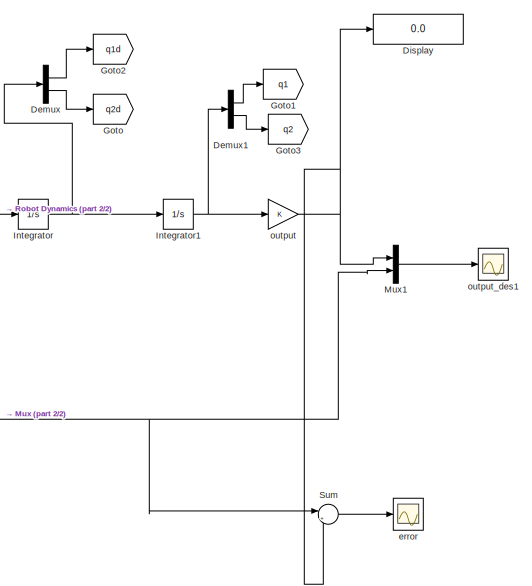
[diagram: root canvas - part 1/2, right side, full height]
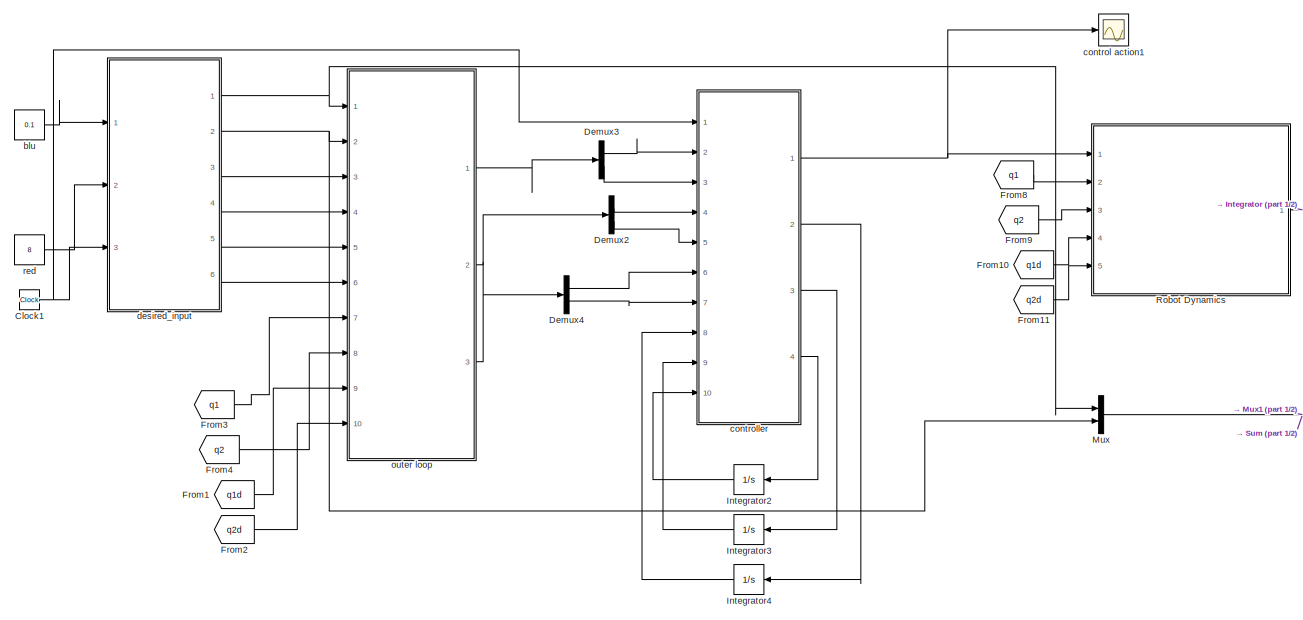
[diagram: root canvas - part 2/2, center side, full height]
MODEL slx_bdb93ca90884
KIND model
CONFIG AbsTol = auto
CONFIG EnableMultiTasking = off
CONFIG FixedStep = 0.001
CONFIG MaxStep = auto
CONFIG MinStep = auto
CONFIG RelTol = 1e-3
CONFIG SampleTimeConstraint = Unconstrained
CONFIG SolverName = ode5
CONFIG StartTime = 0.0
CONFIG StopTime = 5
BLOCK [Clock] Clock1
BLOCK [Demux] Demux
  Outputs = 2
  Ports = [1, 2]
BLOCK [Demux] Demux1
  Outputs = 2
  Ports = [1, 2]
BLOCK [Demux] Demux2
  Outputs = 2
  Ports = [1, 2]
BLOCK [Demux] Demux3
  Outputs = 2
  Ports = [1, 2]
BLOCK [Demux] Demux4
  Outputs = 2
  Ports = [1, 2]
BLOCK [Display] Display
  Decimation = 1
  Ports = [1]
BLOCK [From] From1
  GotoTag = q1d
  TagVisibility = global
BLOCK [From] From10
  GotoTag = q1d
  TagVisibility = global
BLOCK [From] From11
  GotoTag = q2d
  TagVisibility = global
BLOCK [From] From2
  GotoTag = q2d
  TagVisibility = global
BLOCK [From] From3
  GotoTag = q1
  TagVisibility = global
BLOCK [From] From4
  GotoTag = q2
  TagVisibility = global
BLOCK [From] From8
  GotoTag = q1
  TagVisibility = global
BLOCK [From] From9
  GotoTag = q2
  TagVisibility = global
BLOCK [Goto] Goto
  GotoTag = q2d
  TagVisibility = global
BLOCK [Goto] Goto1
  GotoTag = q1
  TagVisibility = global
BLOCK [Goto] Goto2
  GotoTag = q1d
  TagVisibility = global
BLOCK [Goto] Goto3
  GotoTag = q2
  TagVisibility = global
BLOCK [Integrator] Integrator
  InitialCondition = [0;0]
  Ports = [1, 1]
BLOCK [Integrator] Integrator1
  InitialCondition = [0;0]
  Ports = [1, 1]
BLOCK [Integrator] Integrator2
  InitialCondition = rand(3,2)
  Ports = [1, 1]
BLOCK [Integrator] Integrator3
  InitialCondition = rand(6,2)
  Ports = [1, 1]
BLOCK [Integrator] Integrator4
  InitialCondition = rand(6,2)
  Ports = [1, 1]
BLOCK [Mux] Mux
  DisplayOption = bar
  Inputs = 2
  Ports = [2, 1]
BLOCK [Mux] Mux1
  DisplayOption = bar
  Inputs = 2
  Ports = [2, 1]
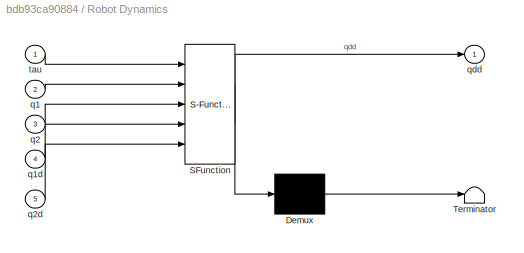
BLOCK [SubSystem] Robot Dynamics
  ErrorFcn = Stateflow.Translate.translate
  PermitHierarchicalResolution = ExplicitOnly
  Ports = [5, 1]
  RequestExecContextInheritance = off
  SFBlockType = MATLAB Function
  TreatAsAtomicUnit = on
BLOCK [Demux] Robot Dynamics/ Demux 
  Outputs = 1
  Ports = [1, 1]
BLOCK [S-Function] Robot Dynamics/ SFunction 
  EnableBusSupport = on
  FunctionName = sf_sfun
  PortCounts = [5 2]
  Ports = [5, 2]
  SFcnIsStateOwnerBlock = off
  SFunctionDeploymentMode = off
  Tag = Stateflow S-Function 1
BLOCK [Terminator] Robot Dynamics/ Terminator 
BLOCK [Inport] Robot Dynamics/q1
  Port = 2
BLOCK [Inport] Robot Dynamics/q1d
  Port = 4
BLOCK [Inport] Robot Dynamics/q2
  Port = 3
BLOCK [Inport] Robot Dynamics/q2d
  Port = 5
BLOCK [Outport] Robot Dynamics/qdd
BLOCK [Inport] Robot Dynamics/tau
BLOCK [Sum] Sum
  Inputs = |+-
  Ports = [2, 1]
BLOCK [Constant] blu
  Value = 0.1
BLOCK [Scope] control action1
  Floating = off
  NumInputPorts = 1
  Ports = [1]
  ScopeSpecificationString = Simulink.scopes.TimeScopeBlockCfg('CurrentConfiguration', extmgr.ConfigurationSet(extmgr.Configuration('Core','General UI',true,'FigureColor',[1 1 1]),extmgr.Configuration('Core','Source UI',true),extmgr.Configuration('Sources','WiredSimulink',true,'DataLoggingVariableName','ScopeData1','DataLoggingSaveFormat','StructureWithTime','DataLoggingDecimation','1','DataLoggingDecimateData',true),extmgr.C...<+2311ch>
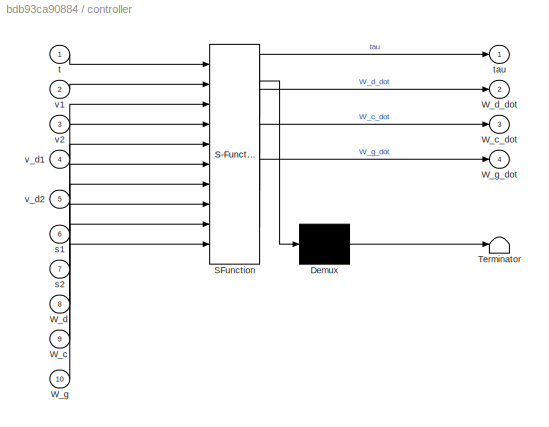
BLOCK [SubSystem] controller
  ErrorFcn = Stateflow.Translate.translate
  PermitHierarchicalResolution = ExplicitOnly
  Ports = [10, 4]
  RequestExecContextInheritance = off
  SFBlockType = MATLAB Function
  TreatAsAtomicUnit = on
BLOCK [Demux] controller/ Demux 
  Outputs = 1
  Ports = [1, 1]
BLOCK [S-Function] controller/ SFunction 
  EnableBusSupport = on
  FunctionName = sf_sfun
  PortCounts = [10 5]
  Ports = [10, 5]
  SFcnIsStateOwnerBlock = off
  SFunctionDeploymentMode = off
  Tag = Stateflow S-Function 2
BLOCK [Terminator] controller/ Terminator 
BLOCK [Inport] controller/W_c
  Port = 9
BLOCK [Outport] controller/W_c_dot
  Port = 3
BLOCK [Inport] controller/W_d
  Port = 8
BLOCK [Outport] controller/W_d_dot
  Port = 2
BLOCK [Inport] controller/W_g
  Port = 10
BLOCK [Outport] controller/W_g_dot
  Port = 4
BLOCK [Inport] controller/s1
  Port = 6
BLOCK [Inport] controller/s2
  Port = 7
BLOCK [Inport] controller/t
BLOCK [Outport] controller/tau
BLOCK [Inport] controller/v1
  Port = 2
BLOCK [Inport] controller/v2
  Port = 3
BLOCK [Inport] controller/v_d1
  Port = 4
BLOCK [Inport] controller/v_d2
  Port = 5
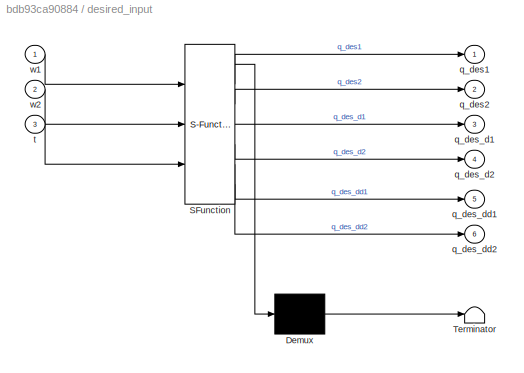
BLOCK [SubSystem] desired_input
  ErrorFcn = Stateflow.Translate.translate
  PermitHierarchicalResolution = ExplicitOnly
  Ports = [3, 6]
  RequestExecContextInheritance = off
  SFBlockType = MATLAB Function
  TreatAsAtomicUnit = on
BLOCK [Demux] desired_input/ Demux 
  Outputs = 1
  Ports = [1, 1]
BLOCK [S-Function] desired_input/ SFunction 
  EnableBusSupport = on
  FunctionName = sf_sfun
  PortCounts = [3 7]
  Ports = [3, 7]
  SFcnIsStateOwnerBlock = off
  SFunctionDeploymentMode = off
  Tag = Stateflow S-Function 4
BLOCK [Terminator] desired_input/ Terminator 
BLOCK [Outport] desired_input/q_des1
BLOCK [Outport] desired_input/q_des2
  Port = 2
BLOCK [Outport] desired_input/q_des_d1
  Port = 3
BLOCK [Outport] desired_input/q_des_d2
  Port = 4
BLOCK [Outport] desired_input/q_des_dd1
  Port = 5
BLOCK [Outport] desired_input/q_des_dd2
  Port = 6
BLOCK [Inport] desired_input/t
  Port = 3
BLOCK [Inport] desired_input/w1
BLOCK [Inport] desired_input/w2
  Port = 2
BLOCK [Scope] error
  Floating = off
  NumInputPorts = 1
  Ports = [1]
  ScopeSpecificationString = C++SS(StrPVP('Location','[10, 106, 1372, 757]'),StrPVP('Open','off'),StrPVP('ZoomMode','yonly'),MxPVP('AxesTitles',54,'struct(''axes1'',''%<SignalLabel>'')'),MxPVP('ScopeGraphics',57,'struct(''FigureColor'',''[0.156862745098039 0.156862745098039 0.156862745098039]'',''AxesColor'',''[0 0 0]'',''AxesTickColor'',''[0.686274509803922 0.686274509803922 0.686274509803922]'',''LineColors'',''[1 1 0;1 0 1...<+377ch>
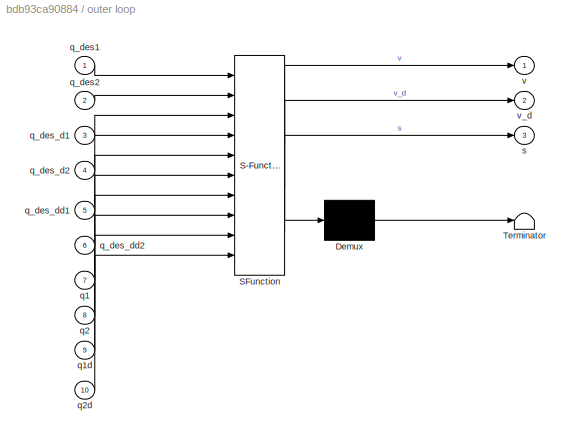
BLOCK [SubSystem] outer loop
  ErrorFcn = Stateflow.Translate.translate
  PermitHierarchicalResolution = ExplicitOnly
  Ports = [10, 3]
  RequestExecContextInheritance = off
  SFBlockType = MATLAB Function
  TreatAsAtomicUnit = on
BLOCK [Demux] outer loop/ Demux 
  Outputs = 1
  Ports = [1, 1]
BLOCK [S-Function] outer loop/ SFunction 
  EnableBusSupport = on
  FunctionName = sf_sfun
  PortCounts = [10 4]
  Ports = [10, 4]
  SFcnIsStateOwnerBlock = off
  SFunctionDeploymentMode = off
  Tag = Stateflow S-Function 3
BLOCK [Terminator] outer loop/ Terminator 
BLOCK [Inport] outer loop/q1
  Port = 7
BLOCK [Inport] outer loop/q1d
  Port = 9
BLOCK [Inport] outer loop/q2
  Port = 8
BLOCK [Inport] outer loop/q2d
  Port = 10
BLOCK [Inport] outer loop/q_des1
BLOCK [Inport] outer loop/q_des2
  Port = 2
BLOCK [Inport] outer loop/q_des_d1
  Port = 3
BLOCK [Inport] outer loop/q_des_d2
  Port = 4
BLOCK [Inport] outer loop/q_des_dd1
  Port = 5
BLOCK [Inport] outer loop/q_des_dd2
  Port = 6
BLOCK [Outport] outer loop/s
  Port = 3
BLOCK [Outport] outer loop/v
BLOCK [Outport] outer loop/v_d
  Port = 2
BLOCK [Gain] output
BLOCK [Scope] output_des1
  Floating = off
  NumInputPorts = 1
  Ports = [1]
  ScopeSpecificationString = Simulink.scopes.TimeScopeBlockCfg('CurrentConfiguration', extmgr.ConfigurationSet(extmgr.Configuration('Core','General UI',true,'FigureColor',[1 1 1]),extmgr.Configuration('Core','Source UI',true),extmgr.Configuration('Sources','WiredSimulink',true,'DataLoggingVariableName','ScopeData2','DataLoggingSaveFormat','StructureWithTime','DataLoggingDecimation','1','DataLoggingDecimateData',true),extmgr.C...<+2930ch>
BLOCK [Constant] red
  Value = 8
NET Clock1:1 -> controller:1, desired_input:3
LINE Demux1:1 -> Goto1:1
LINE Demux1:2 -> Goto3:1
LINE Demux2:1 -> controller:4
LINE Demux2:2 -> controller:5
LINE Demux3:1 -> controller:2
LINE Demux3:2 -> controller:3
LINE Demux4:1 -> controller:6
LINE Demux4:2 -> controller:7
LINE Demux:1 -> Goto2:1
LINE Demux:2 -> Goto:1
LINE From10:1 -> Robot Dynamics:4
LINE From11:1 -> Robot Dynamics:5
LINE From1:1 -> outer loop:9
LINE From2:1 -> outer loop:10
LINE From3:1 -> outer loop:7
LINE From4:1 -> outer loop:8
LINE From8:1 -> Robot Dynamics:2
LINE From9:1 -> Robot Dynamics:3
NET Integrator1:1 -> Demux1:1, output:1
LINE Integrator2:1 -> controller:10
LINE Integrator3:1 -> controller:9
LINE Integrator4:1 -> controller:8
NET Integrator:1 -> Demux:1, Integrator1:1
LINE Mux1:1 -> output_des1:1
NET Mux:1 -> Mux1:2, Sum:1
LINE Robot Dynamics:1 -> Integrator:1
LINE Sum:1 -> error:1
LINE blu:1 -> desired_input:1
NET controller:1 -> Robot Dynamics:1, control action1:1
LINE controller:2 -> Integrator4:1
LINE controller:3 -> Integrator3:1
LINE controller:4 -> Integrator2:1
NET desired_input:1 -> Mux:1, outer loop:1
NET desired_input:2 -> Mux:2, outer loop:2
LINE desired_input:3 -> outer loop:3
LINE desired_input:4 -> outer loop:4
LINE desired_input:5 -> outer loop:5
LINE desired_input:6 -> outer loop:6
LINE outer loop:1 -> Demux3:1
LINE outer loop:2 -> Demux2:1
LINE outer loop:3 -> Demux4:1
NET output:1 -> Display:1, Mux1:1, Sum:2
LINE red:1 -> desired_input:2
note: NET lines group one-source signal fan-out (src -> all destinations, sorted); 1:1 wires keep LINE
CHART Robot Dynamics states=1 transitions=1
  STATE_LABEL 'eML_blk_kernel()'
  STATE_LABEL 'SCRIPT:\nfunction qdd = fcn(tau,q1,q2,q1d,q2d)\n\n% q1=q(1);\n% q2=q(2);\n% \n% q1d=qd(1);\n% q2d=qd(2);\n\nqd = [q1d;q2d];\n\nm1=.1;\nm2=.1;\n\nI1=.01;\nI2=.01;\n\nl1=.12;\nl2=.1;\n\nlc1=l1/2;\nlc2=l2/2;\n\n\ng=9.8;\n\n\n\nd11=m1*lc1^2+m2*(l1^2+lc2^2+2*l1*lc2^2+2*l1*l2*cos(q2))+I1+I2;\nd12=m2*(lc2^2+l1*l2*cos(q2))+I2;\nd22=m2*lc2^2+I2;\n\nh=-m2*l1*lc2*sin(q2);\n\nc121=h;\nc211=h;\nc112=-h;\nc221=h;\n\n\n\nM=[d11,d12;d12,d22];\nC=[c121*q2...<+130ch>'
CHART controller states=1 transitions=1
  STATE_LABEL 'eML_blk_kernel()'
  STATE_LABEL "SCRIPT:\nfunction [tau,W_d_dot,W_c_dot,W_g_dot] = fcn(t,v1,v2,v_d1,v_d2,s1,s2,W_d,W_c,W_g)\ns = [s1;s2];\nv = [v1;v2];\nv_d = [v_d1;v_d2];\nfn = 5;\n%sinwt w =50\nzz = [1;sin(fn*t);sin(2*fn*t)];\n\nZd = [zz,zeros(3,1);zeros(3,1),zz];\n\nZc = Zd;\nZg = zz;\n\nD_hat = W_d'*Zd;\nC_hat = W_c'*Zc;\ng_hat = W_g'*Zg;\n\nQd = 1000*eye(6);\nQc = 1000*eye(6);\nQg = 1000*eye(3);\n\nKd = [8 0;0 8];\nrobust = [sign(s(1,1));sign(s(2,...<+141ch>"
CHART outer loop states=1 transitions=1
  STATE_LABEL 'eML_blk_kernel()'
  STATE_LABEL 'SCRIPT:\nfunction [v,v_d,s] = fcn(q_des1,q_des2,q_des_d1,q_des_d2,q_des_dd1,q_des_dd2,q1,q2,q1d,q2d)\ngamma = 20;\nq_des = [q_des1;q_des2];\nq_des_d = [q_des_d1;q_des_d2];\nq_des_dd = [q_des_dd1;q_des_dd2];\nq = [q1;q2];\nqd = [q1d;q2d];\n\ne = q-q_des;\ne_d = qd-q_des_d;\n\ns = e_d+gamma*e;\nv = q_des_d-gamma*e;\nv_d = q_des_dd-gamma*e_d;\n\n\n'
CHART desired_input states=1 transitions=1
  STATE_LABEL 'eML_blk_kernel()'
  STATE_LABEL 'SCRIPT:\nfunction [q_des1,q_des2,q_des_d1,q_des_d2,q_des_dd1,q_des_dd2] = fcn(w1,w2,t)\nq_des1 = sin(w1*t);\nq_des2 = sin(w2*t);\n\nq_des_d1 = w1*(cos(w1*t));\nq_des_d2 = w2*(cos(w2*t));\n\nq_des_dd1 = -w1^2*(sin(w1*t));\nq_des_dd2 = -w2^2*(sin(w2*t));\n\n'
CHART  states=0 transitions=0
CHART  states=0 transitions=0
CHART  states=0 transitions=0
CHART  states=0 transitions=0
